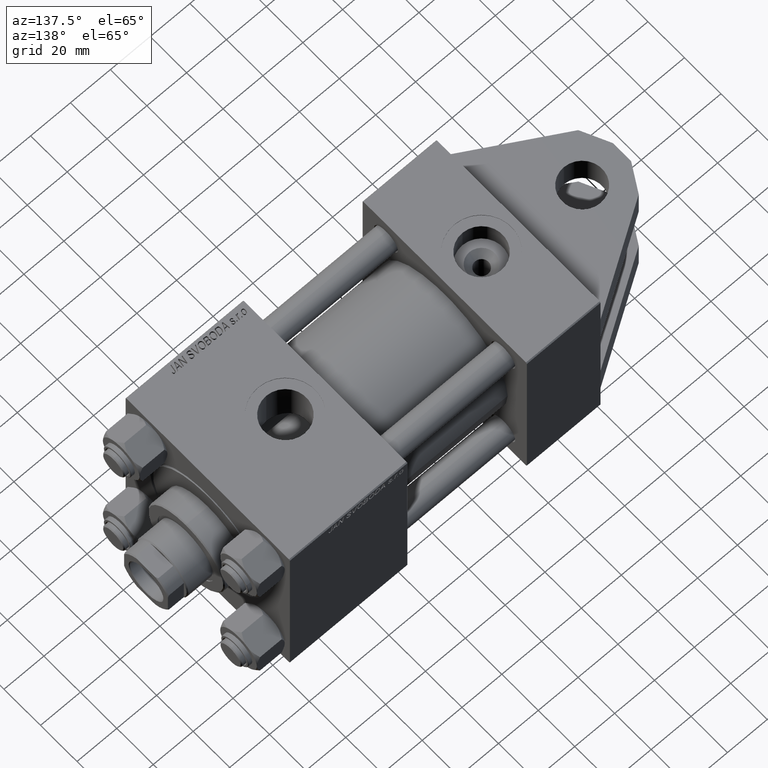
[diagram: clean part render]
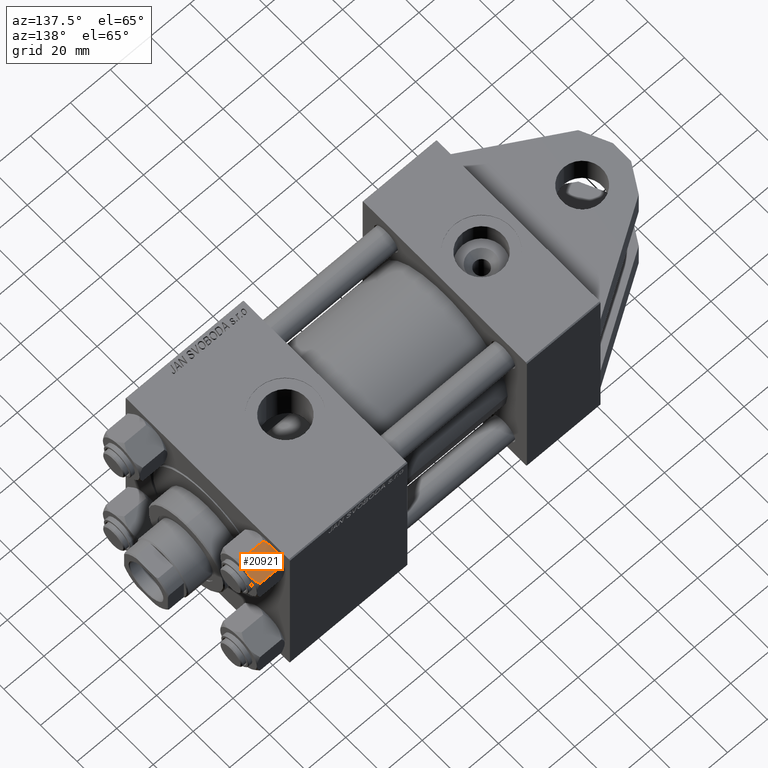
[diagram: same view with one face highlighted and labeled with its STEP entity id]
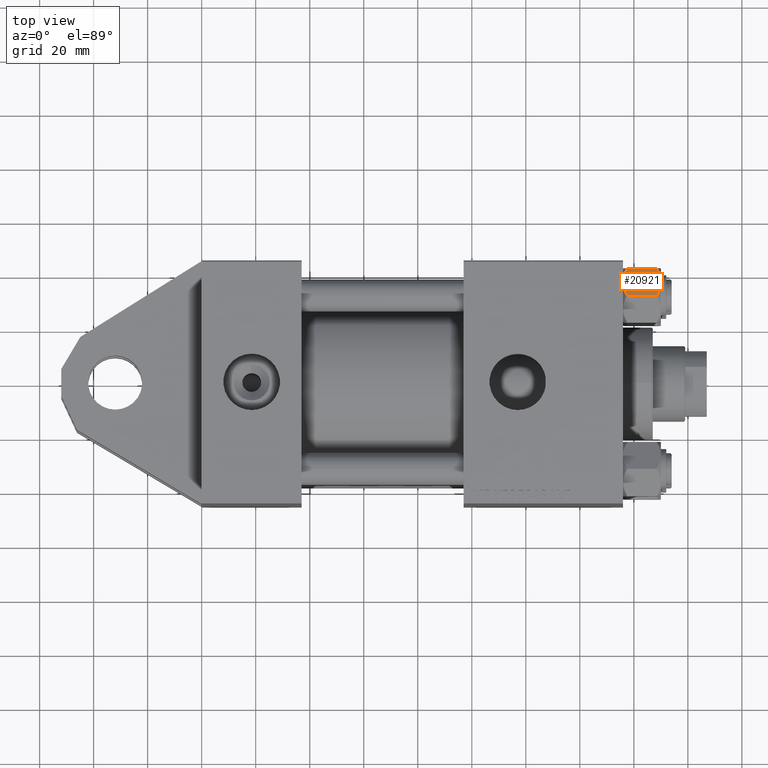
[diagram: same view with one face highlighted and labeled with its STEP entity id]
A machine part, auxiliary view. The second image highlights one B-rep face of the part: STEP entity #20921.
A second angle (top view) of the same face is appended — the face is thin or edge-on in the first view.
In plain terms, the highlighted planar face has unit normal (-0, -0.5, -0.866).
Its self-contained STEP definition (entity closure, byte-faithful):
#242 = LINE ( 'NONE', #31914, #17187 ) ;
#634 = CARTESIAN_POINT ( 'NONE',  ( -11.61999999999999922, 6.288644352490894150E-15, -14.00000000000000000 ) ) ;
#2815 = CARTESIAN_POINT ( 'NONE',  ( -5.810000000000000497, -10.06321519197517844, -12.44321519197518455 ) ) ;
#3695 = ORIENTED_EDGE ( 'NONE', *, *, #25235, .T. ) ;
#3924 = VERTEX_POINT ( 'NONE', #42864 ) ;
#4208 = CARTESIAN_POINT ( 'NONE',  ( -11.61999999999999922, 6.270720075510426383E-15, -12.44321519197518811 ) ) ;
#4641 = EDGE_LOOP ( 'NONE', ( #20172, #3695, #37769, #26518, #7588, #6716 ) ) ;
#5286 = CARTESIAN_POINT ( 'NONE',  ( -8.969430103550386946, -4.590921729663310025, 6.662949392646161370E-15 ) ) ;
#6347 = CARTESIAN_POINT ( 'NONE',  ( -6.731401448974990487, -8.467301068182912616, -13.28585617404753627 ) ) ;
#6716 = ORIENTED_EDGE ( 'NONE', *, *, #24333, .F. ) ;
#6865 = CARTESIAN_POINT ( 'NONE',  ( -6.265018354709776638, -9.275100283241451748, -1.101766453314952043 ) ) ;
#7109 = CARTESIAN_POINT ( 'NONE',  ( -5.810000000000000497, -10.06321519197517844, -1.556784808024813893 ) ) ;
#7588 = ORIENTED_EDGE ( 'NONE', *, *, #48827, .F. ) ;
#7662 = CARTESIAN_POINT ( 'NONE',  ( -8.715000000000005187, -5.031607595987585668, -14.00000000000000000 ) ) ;
#7913 = CARTESIAN_POINT ( 'NONE',  ( -11.16498164529022041, -0.7881149087337220305, -12.89823354668505040 ) ) ;
#8972 = CARTESIAN_POINT ( 'NONE',  ( -5.810000000000000497, -10.06321519197517844, -12.44321519197518455 ) ) ;
#9323 = FACE_OUTER_BOUND ( 'NONE', #4641, .T. ) ;
#9576 = DIRECTION ( 'NONE',  ( -0.4999999999999994449, 0.8660254037844389297, 0.000000000000000000 ) ) ;
#11387 = CARTESIAN_POINT ( 'NONE',  ( -8.715000000000006963, -5.031607595987586556, 0.000000000000000000 ) ) ;
#11703 = LINE ( 'NONE', #634, #31327 ) ;
#12346 = CARTESIAN_POINT ( 'NONE',  ( -9.227666995912100489, -4.143642311704120118, -0.03994118060690279165 ) ) ;
#12459 = B_SPLINE_CURVE_WITH_KNOTS ( 'NONE', 3,
 ( #11387, #49364, #26461, #26210, #6865, #7109 ),
 .UNSPECIFIED., .F., .F.,
 ( 4, 2, 4 ),
 ( 0.006022845781655586372, 0.009013049135303635023, 0.01200325248895168367 ),
 .UNSPECIFIED. ) ;
#12704 = DIRECTION ( 'NONE',  ( -0.000000000000000000, -0.000000000000000000, 1.000000000000000000 ) ) ;
#13906 = CARTESIAN_POINT ( 'NONE',  ( -8.715000000000005187, -5.031607595987585668, -14.00000000000000000 ) ) ;
#17187 = VECTOR ( 'NONE', #47256, 1000.000000000000000 ) ;
#19038 = B_SPLINE_CURVE_WITH_KNOTS ( 'NONE', 3,
 ( #7662, #22246, #19489, #27020, #7913, #23245 ),
 .UNSPECIFIED., .F., .F.,
 ( 4, 2, 4 ),
 ( 0.006022845781655597648, 0.009013049135303643697, 0.01200325248895169061 ),
 .UNSPECIFIED. ) ;
#19414 = B_SPLINE_CURVE_WITH_KNOTS ( 'NONE', 3,
 ( #43764, #39984, #39492, #46808, #47542, #12346, #5286, #23906 ),
 .UNSPECIFIED., .F., .F.,
 ( 4, 2, 2, 4 ),
 ( 2.544312114893457383E-07, 0.003011550106433538623, 0.004517197944044561847, 0.006022845781655586372 ),
 .UNSPECIFIED. ) ;
#19489 = CARTESIAN_POINT ( 'NONE',  ( -9.716999946243696229, -3.296092779912219495, -13.84547602999602134 ) ) ;
#20172 = ORIENTED_EDGE ( 'NONE', *, *, #38586, .F. ) ;
#20888 = PLANE ( 'NONE',  #25899 ) ;
#20921 = ADVANCED_FACE ( 'NONE', ( #9323 ), #20888, .F. ) ;
#22116 = CARTESIAN_POINT ( 'NONE',  ( -8.715000000000005187, -5.031607595987585668, -14.00000000000000000 ) ) ;
#22246 = CARTESIAN_POINT ( 'NONE',  ( -9.220295946303432189, -4.156409344131445138, -14.00000000000000711 ) ) ;
#23245 = CARTESIAN_POINT ( 'NONE',  ( -11.61999999999999922, 6.270720075510426383E-15, -12.44321519197518811 ) ) ;
#23906 = CARTESIAN_POINT ( 'NONE',  ( -8.715000000000006963, -5.031607595987586556, 0.000000000000000000 ) ) ;
#24333 = EDGE_CURVE ( 'NONE', #30095, #47066, #19038, .T. ) ;
#24620 = EDGE_CURVE ( 'NONE', #48427, #3924, #12459, .T. ) ;
#24661 = DIRECTION ( 'NONE',  ( 0.8660254037844390407, 0.4999999999999995004, 0.000000000000000000 ) ) ;
#25235 = EDGE_CURVE ( 'NONE', #47198, #3924, #242, .T. ) ;
#25609 = VERTEX_POINT ( 'NONE', #32356 ) ;
#25698 = CARTESIAN_POINT ( 'NONE',  ( -7.700834831386345058, -6.788193195293090731, -13.80960203119265906 ) ) ;
#25899 = AXIS2_PLACEMENT_3D ( 'NONE', #40003, #24661, #9576 ) ;
#26210 = CARTESIAN_POINT ( 'NONE',  ( -6.733375043383495573, -8.463882702393842550, -0.7114554706434480513 ) ) ;
#26461 = CARTESIAN_POINT ( 'NONE',  ( -7.713000053756304375, -6.767122412062951398, -0.1545239700039803266 ) ) ;
#26518 = ORIENTED_EDGE ( 'NONE', *, *, #35911, .F. ) ;
#27020 = CARTESIAN_POINT ( 'NONE',  ( -10.69662495661650325, -1.599332489581326122, -13.28854452935654962 ) ) ;
#30095 = VERTEX_POINT ( 'NONE', #22116 ) ;
#31327 = VECTOR ( 'NONE', #12704, 1000.000000000000000 ) ;
#31914 = CARTESIAN_POINT ( 'NONE',  ( -5.810000000000000497, -10.06321519197517844, -14.00000000000000000 ) ) ;
#32356 = CARTESIAN_POINT ( 'NONE',  ( -11.61999999999999922, 6.270720075409452187E-15, -1.556784808024810562 ) ) ;
#32765 = CARTESIAN_POINT ( 'NONE',  ( -6.265545725125286403, -9.274186850887383926, -12.89876091710047135 ) ) ;
#33031 = B_SPLINE_CURVE_WITH_KNOTS ( 'NONE', 3,
 ( #2815, #32765, #6347, #37273, #25698, #48105, #36782, #13906 ),
 .UNSPECIFIED., .F., .F.,
 ( 4, 2, 2, 4 ),
 ( 2.544312114906334931E-07, 0.003011550106433545128, 0.004517197944044571388, 0.006022845781655597648 ),
 .UNSPECIFIED. ) ;
#35911 = EDGE_CURVE ( 'NONE', #25609, #48427, #19414, .T. ) ;
#36782 = CARTESIAN_POINT ( 'NONE',  ( -8.460569896449618099, -5.472293462311855095, -14.00000000000000355 ) ) ;
#37273 = CARTESIAN_POINT ( 'NONE',  ( -7.455303369716807182, -7.213466161761382445, -13.69973261901325934 ) ) ;
#37769 = ORIENTED_EDGE ( 'NONE', *, *, #24620, .F. ) ;
#38586 = EDGE_CURVE ( 'NONE', #47198, #30095, #33031, .T. ) ;
#39492 = CARTESIAN_POINT ( 'NONE',  ( -10.69859855102500923, -1.595914123792257611, -0.7141438259524607313 ) ) ;
#39984 = CARTESIAN_POINT ( 'NONE',  ( -11.16445427487471420, -0.7890283410877914072, -1.101239082899528432 ) ) ;
#40003 = CARTESIAN_POINT ( 'NONE',  ( -5.810000000000000497, -10.06321519197517844, -14.00000000000000000 ) ) ;
#42864 = CARTESIAN_POINT ( 'NONE',  ( -5.810000000000000497, -10.06321519197517844, -1.556784808024813893 ) ) ;
#43764 = CARTESIAN_POINT ( 'NONE',  ( -11.61999999999999922, 6.270720075409452187E-15, -1.556784808024810562 ) ) ;
#45044 = CARTESIAN_POINT ( 'NONE',  ( -8.715000000000006963, -5.031607595987586556, 0.000000000000000000 ) ) ;
#46808 = CARTESIAN_POINT ( 'NONE',  ( -9.974696630283190757, -2.849749030213787115, -0.3002673809867329457 ) ) ;
#47066 = VERTEX_POINT ( 'NONE', #4208 ) ;
#47198 = VERTEX_POINT ( 'NONE', #8972 ) ;
#47256 = DIRECTION ( 'NONE',  ( -0.000000000000000000, -0.000000000000000000, 1.000000000000000000 ) ) ;
#47542 = CARTESIAN_POINT ( 'NONE',  ( -9.729165168613654657, -3.275021996682076608, -0.1903979688073365595 ) ) ;
#48105 = CARTESIAN_POINT ( 'NONE',  ( -8.202333004087901003, -5.919572880271046778, -13.96005881939309390 ) ) ;
#48427 = VERTEX_POINT ( 'NONE', #45044 ) ;
#48827 = EDGE_CURVE ( 'NONE', #47066, #25609, #11703, .T. ) ;
#49364 = CARTESIAN_POINT ( 'NONE',  ( -8.209704053696567527, -5.906805847843720869, 6.159623592433269699E-15 ) ) ;